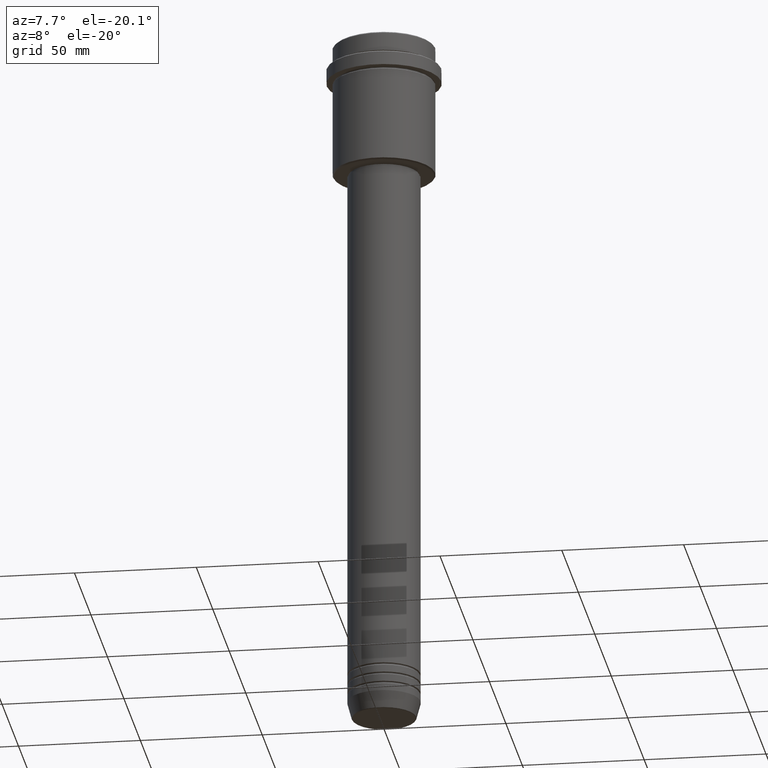
[diagram: clean part render]
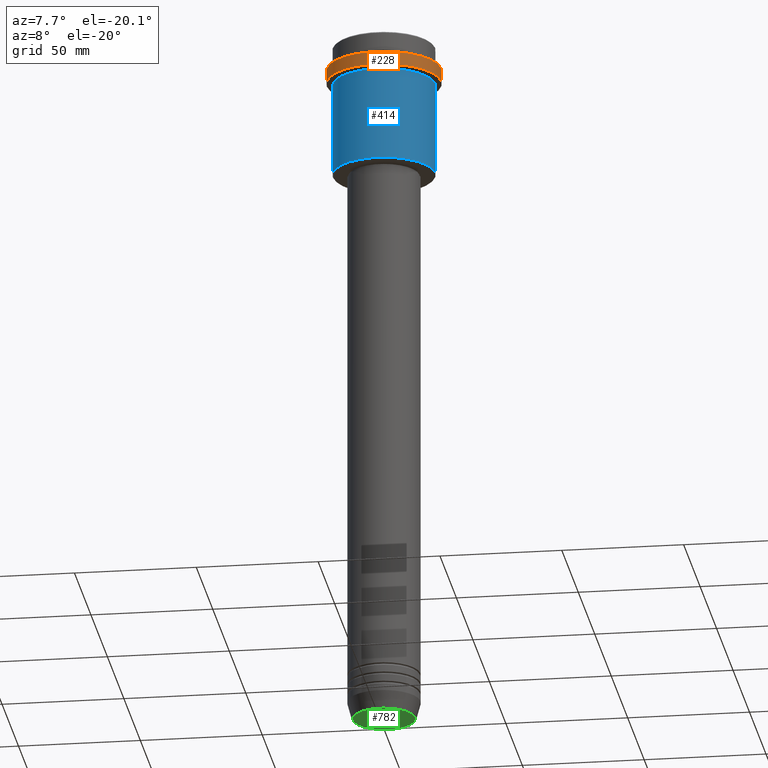
[diagram: same view with three faces highlighted in distinct colors, each labeled with its STEP entity id]
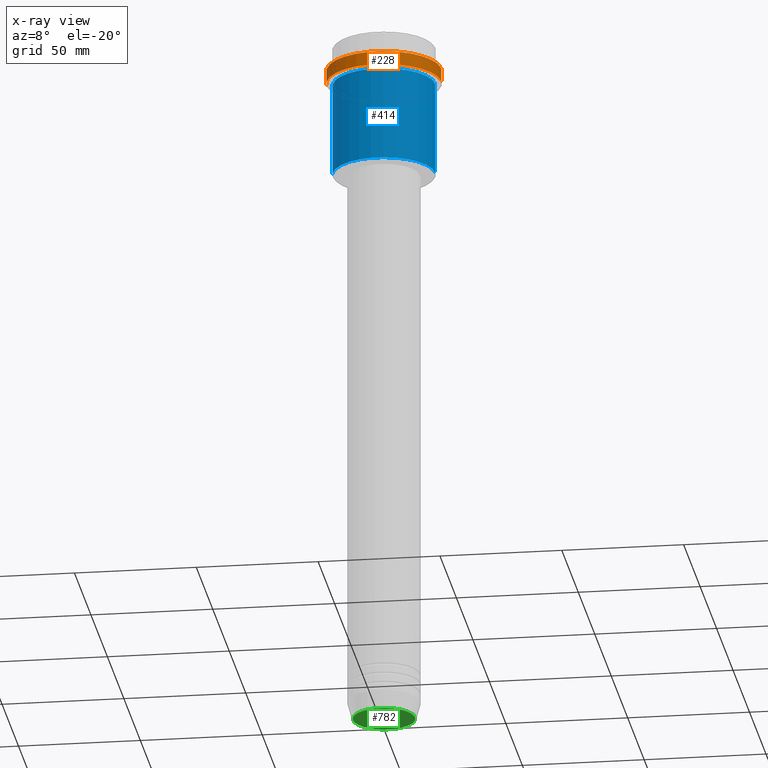
[diagram: x-ray of the same camera — body ghosted, the three highlighted faces saturated]
A machine part, auxiliary view with three faces highlighted in distinct colors.
The next image is the same camera in x-ray (body ghosted, the three faces saturated) — at least one of them is partly hidden behind the body in this view.
Their STEP definitions:

[orange] entity #228 — the highlighted cylindrical surface (partial cylindrical patch) has radius 23.5 mm, axis along (-0, -0, 1).
#79 = VERTEX_POINT ( 'NONE', #304 ) ;
#95 = CARTESIAN_POINT ( 'NONE',  ( 23.50000000000000000, 0.000000000000000000, 0.000000000000000000 ) ) ;
#125 = AXIS2_PLACEMENT_3D ( 'NONE', #307, #749, #404 ) ;
#153 = CIRCLE ( 'NONE', #895, 23.50000000000000355 ) ;
#218 = VERTEX_POINT ( 'NONE', #459 ) ;
#228 = ADVANCED_FACE ( 'NONE', ( #1324 ), #352, .T. ) ;
#239 = CARTESIAN_POINT ( 'NONE',  ( -23.50000000000000000, 2.877919977996280320E-15, 0.000000000000000000 ) ) ;
#304 = CARTESIAN_POINT ( 'NONE',  ( 23.50000000000000355, 0.000000000000000000, -15.00000000000000178 ) ) ;
#307 = CARTESIAN_POINT ( 'NONE',  ( 0.000000000000000000, 0.000000000000000000, -9.500000000000111910 ) ) ;
#323 = ORIENTED_EDGE ( 'NONE', *, *, #991, .F. ) ;
#352 = CYLINDRICAL_SURFACE ( 'NONE', #707, 23.50000000000000000 ) ;
#379 = DIRECTION ( 'NONE',  ( -0.000000000000000000, -0.000000000000000000, 1.000000000000000000 ) ) ;
#404 = DIRECTION ( 'NONE',  ( 1.000000000000000000, 0.000000000000000000, 0.000000000000000000 ) ) ;
#429 = LINE ( 'NONE', #239, #458 ) ;
#449 = CARTESIAN_POINT ( 'NONE',  ( 0.000000000000000000, 0.000000000000000000, -15.00000000000000178 ) ) ;
#458 = VECTOR ( 'NONE', #683, 1000.000000000000000 ) ;
#459 = CARTESIAN_POINT ( 'NONE',  ( -23.50000000000000000, 2.877919977996280320E-15, -9.500000000000111910 ) ) ;
#487 = CARTESIAN_POINT ( 'NONE',  ( 0.000000000000000000, 0.000000000000000000, 0.000000000000000000 ) ) ;
#489 = CARTESIAN_POINT ( 'NONE',  ( -23.50000000000000711, 2.877919977996281109E-15, -15.00000000000000178 ) ) ;
#560 = DIRECTION ( 'NONE',  ( 1.000000000000000000, 0.000000000000000000, 0.000000000000000000 ) ) ;
#577 = CARTESIAN_POINT ( 'NONE',  ( 23.50000000000000000, 0.000000000000000000, -9.500000000000111910 ) ) ;
#598 = EDGE_LOOP ( 'NONE', ( #323, #765, #1060, #714 ) ) ;
#683 = DIRECTION ( 'NONE',  ( -0.000000000000000000, -0.000000000000000000, 1.000000000000000000 ) ) ;
#689 = EDGE_CURVE ( 'NONE', #1245, #79, #153, .T. ) ;
#707 = AXIS2_PLACEMENT_3D ( 'NONE', #487, #379, #923 ) ;
#714 = ORIENTED_EDGE ( 'NONE', *, *, #964, .T. ) ;
#749 = DIRECTION ( 'NONE',  ( 0.000000000000000000, 0.000000000000000000, -1.000000000000000000 ) ) ;
#758 = CIRCLE ( 'NONE', #125, 23.50000000000000000 ) ;
#765 = ORIENTED_EDGE ( 'NONE', *, *, #689, .T. ) ;
#895 = AXIS2_PLACEMENT_3D ( 'NONE', #449, #1084, #560 ) ;
#923 = DIRECTION ( 'NONE',  ( 1.000000000000000000, 0.000000000000000000, 0.000000000000000000 ) ) ;
#964 = EDGE_CURVE ( 'NONE', #1113, #218, #758, .T. ) ;
#991 = EDGE_CURVE ( 'NONE', #1245, #218, #429, .T. ) ;
#1017 = DIRECTION ( 'NONE',  ( -0.000000000000000000, -0.000000000000000000, 1.000000000000000000 ) ) ;
#1060 = ORIENTED_EDGE ( 'NONE', *, *, #1107, .T. ) ;
#1083 = LINE ( 'NONE', #95, #1383 ) ;
#1084 = DIRECTION ( 'NONE',  ( -0.000000000000000000, -0.000000000000000000, 1.000000000000000000 ) ) ;
#1107 = EDGE_CURVE ( 'NONE', #79, #1113, #1083, .T. ) ;
#1113 = VERTEX_POINT ( 'NONE', #577 ) ;
#1245 = VERTEX_POINT ( 'NONE', #489 ) ;
#1324 = FACE_OUTER_BOUND ( 'NONE', #598, .T. ) ;
#1383 = VECTOR ( 'NONE', #1017, 1000.000000000000000 ) ;

[blue] entity #414 — the highlighted cylindrical surface (partial cylindrical patch) has radius 21 mm, axis along (-0, -0, 1).
#1 = LINE ( 'NONE', #1205, #637 ) ;
#6 = EDGE_CURVE ( 'NONE', #1254, #224, #403, .T. ) ;
#42 = DIRECTION ( 'NONE',  ( -0.000000000000000000, -0.000000000000000000, 1.000000000000000000 ) ) ;
#74 = CYLINDRICAL_SURFACE ( 'NONE', #599, 20.99999999999999645 ) ;
#90 = FACE_OUTER_BOUND ( 'NONE', #1394, .T. ) ;
#97 = CARTESIAN_POINT ( 'NONE',  ( 20.99999999999999645, 0.000000000000000000, -54.49999999999996447 ) ) ;
#187 = EDGE_CURVE ( 'NONE', #705, #224, #1, .T. ) ;
#224 = VERTEX_POINT ( 'NONE', #896 ) ;
#257 = EDGE_CURVE ( 'NONE', #1009, #1254, #1352, .T. ) ;
#278 = ORIENTED_EDGE ( 'NONE', *, *, #187, .T. ) ;
#321 = EDGE_CURVE ( 'NONE', #1009, #705, #335, .T. ) ;
#335 = CIRCLE ( 'NONE', #1178, 20.99999999999999645 ) ;
#355 = ORIENTED_EDGE ( 'NONE', *, *, #6, .F. ) ;
#403 = CIRCLE ( 'NONE', #1217, 20.99999999999999645 ) ;
#414 = ADVANCED_FACE ( 'NONE', ( #90 ), #74, .T. ) ;
#426 = DIRECTION ( 'NONE',  ( -0.000000000000000000, -0.000000000000000000, 1.000000000000000000 ) ) ;
#599 = AXIS2_PLACEMENT_3D ( 'NONE', #731, #648, #1283 ) ;
#637 = VECTOR ( 'NONE', #1198, 1000.000000000000000 ) ;
#648 = DIRECTION ( 'NONE',  ( -0.000000000000000000, -0.000000000000000000, 1.000000000000000000 ) ) ;
#705 = VERTEX_POINT ( 'NONE', #97 ) ;
#723 = CARTESIAN_POINT ( 'NONE',  ( 0.000000000000000000, 0.000000000000000000, -54.49999999999996447 ) ) ;
#731 = CARTESIAN_POINT ( 'NONE',  ( 0.000000000000000000, 0.000000000000000000, 0.000000000000000000 ) ) ;
#750 = VECTOR ( 'NONE', #42, 1000.000000000000000 ) ;
#859 = CARTESIAN_POINT ( 'NONE',  ( 0.000000000000000000, 0.000000000000000000, -16.00000000000000355 ) ) ;
#882 = ORIENTED_EDGE ( 'NONE', *, *, #257, .F. ) ;
#896 = CARTESIAN_POINT ( 'NONE',  ( 20.99999999999999645, 0.000000000000000000, -16.00000000000000355 ) ) ;
#1009 = VERTEX_POINT ( 'NONE', #1333 ) ;
#1013 = DIRECTION ( 'NONE',  ( -1.000000000000000000, 0.000000000000000000, 0.000000000000000000 ) ) ;
#1123 = CARTESIAN_POINT ( 'NONE',  ( -20.99999999999999645, 2.571758278209441267E-15, 0.000000000000000000 ) ) ;
#1128 = DIRECTION ( 'NONE',  ( -0.000000000000000000, -0.000000000000000000, 1.000000000000000000 ) ) ;
#1166 = ORIENTED_EDGE ( 'NONE', *, *, #321, .T. ) ;
#1178 = AXIS2_PLACEMENT_3D ( 'NONE', #723, #1128, #1013 ) ;
#1198 = DIRECTION ( 'NONE',  ( -0.000000000000000000, -0.000000000000000000, 1.000000000000000000 ) ) ;
#1205 = CARTESIAN_POINT ( 'NONE',  ( 20.99999999999999645, 0.000000000000000000, 0.000000000000000000 ) ) ;
#1217 = AXIS2_PLACEMENT_3D ( 'NONE', #859, #426, #1284 ) ;
#1254 = VERTEX_POINT ( 'NONE', #1355 ) ;
#1283 = DIRECTION ( 'NONE',  ( 1.000000000000000000, 0.000000000000000000, 0.000000000000000000 ) ) ;
#1284 = DIRECTION ( 'NONE',  ( 1.000000000000000000, 0.000000000000000000, 0.000000000000000000 ) ) ;
#1333 = CARTESIAN_POINT ( 'NONE',  ( -20.99999999999999645, 2.571758278209441267E-15, -54.49999999999996447 ) ) ;
#1352 = LINE ( 'NONE', #1123, #750 ) ;
#1355 = CARTESIAN_POINT ( 'NONE',  ( -20.99999999999999645, 2.571758278209441267E-15, -16.00000000000000355 ) ) ;
#1394 = EDGE_LOOP ( 'NONE', ( #882, #1166, #278, #355 ) ) ;

[green] entity #782 — the highlighted planar face has unit normal (0, -0, 1).
#23 = PLANE ( 'NONE',  #617 ) ;
#127 = VERTEX_POINT ( 'NONE', #358 ) ;
#144 = DIRECTION ( 'NONE',  ( 1.000000000000000000, 0.000000000000000000, 0.000000000000000000 ) ) ;
#158 = EDGE_CURVE ( 'NONE', #127, #1200, #794, .T. ) ;
#184 = CARTESIAN_POINT ( 'NONE',  ( 0.000000000000000000, 0.000000000000000000, -290.0000000000000000 ) ) ;
#195 = AXIS2_PLACEMENT_3D ( 'NONE', #793, #556, #1219 ) ;
#293 = DIRECTION ( 'NONE',  ( 1.000000000000000000, 0.000000000000000000, 0.000000000000000000 ) ) ;
#330 = ORIENTED_EDGE ( 'NONE', *, *, #926, .T. ) ;
#358 = CARTESIAN_POINT ( 'NONE',  ( 12.74069215899265828, 0.000000000000000000, -290.0000000000000000 ) ) ;
#366 = CIRCLE ( 'NONE', #1181, 12.74069215899265828 ) ;
#394 = DIRECTION ( 'NONE',  ( 0.000000000000000000, -0.000000000000000000, 1.000000000000000000 ) ) ;
#415 = DIRECTION ( 'NONE',  ( 0.000000000000000000, 0.000000000000000000, -1.000000000000000000 ) ) ;
#550 = ORIENTED_EDGE ( 'NONE', *, *, #158, .T. ) ;
#556 = DIRECTION ( 'NONE',  ( 0.000000000000000000, 0.000000000000000000, -1.000000000000000000 ) ) ;
#617 = AXIS2_PLACEMENT_3D ( 'NONE', #1024, #394, #144 ) ;
#782 = ADVANCED_FACE ( 'NONE', ( #1011 ), #23, .F. ) ;
#793 = CARTESIAN_POINT ( 'NONE',  ( 0.000000000000000000, 0.000000000000000000, -290.0000000000000000 ) ) ;
#794 = CIRCLE ( 'NONE', #195, 12.74069215899265828 ) ;
#919 = CARTESIAN_POINT ( 'NONE',  ( -12.74069215899265828, 1.589857736427680246E-15, -290.0000000000000000 ) ) ;
#924 = EDGE_LOOP ( 'NONE', ( #550, #330 ) ) ;
#926 = EDGE_CURVE ( 'NONE', #1200, #127, #366, .T. ) ;
#1011 = FACE_OUTER_BOUND ( 'NONE', #924, .T. ) ;
#1024 = CARTESIAN_POINT ( 'NONE',  ( 0.000000000000000000, 0.000000000000000000, -290.0000000000000000 ) ) ;
#1181 = AXIS2_PLACEMENT_3D ( 'NONE', #184, #415, #293 ) ;
#1200 = VERTEX_POINT ( 'NONE', #919 ) ;
#1219 = DIRECTION ( 'NONE',  ( 1.000000000000000000, 0.000000000000000000, 0.000000000000000000 ) ) ;